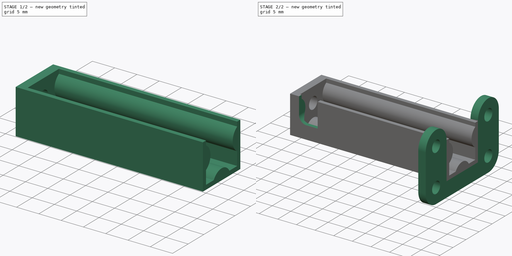
[diagram: build sequence overview — one tinted view per stage of 2, left to right]
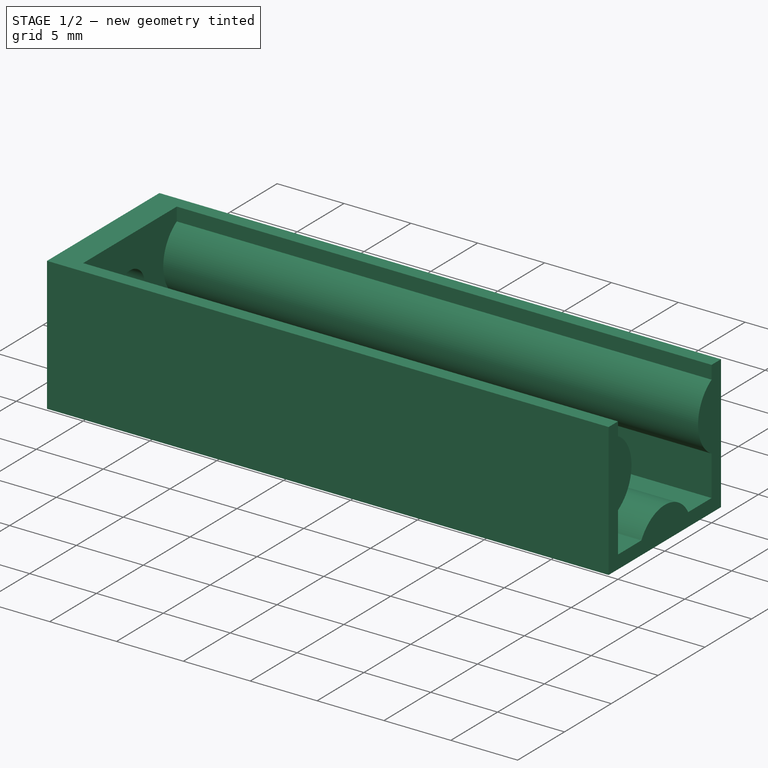
[diagram: stage 1 of 2 — iso view after this stage's code; geometry added in this stage tinted green]
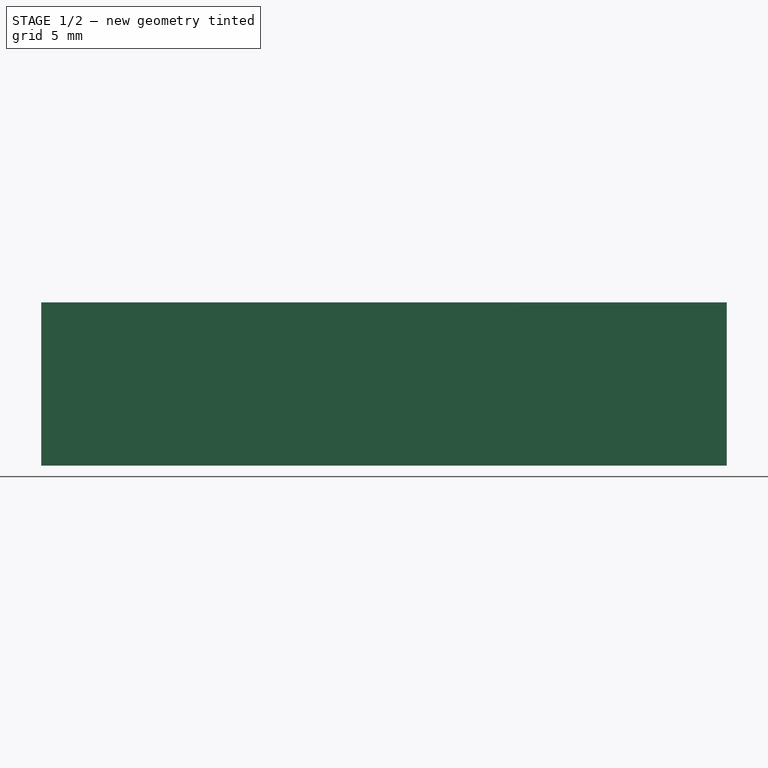
[diagram: stage 1 of 2 — front view after this stage's code; geometry added in this stage tinted green]
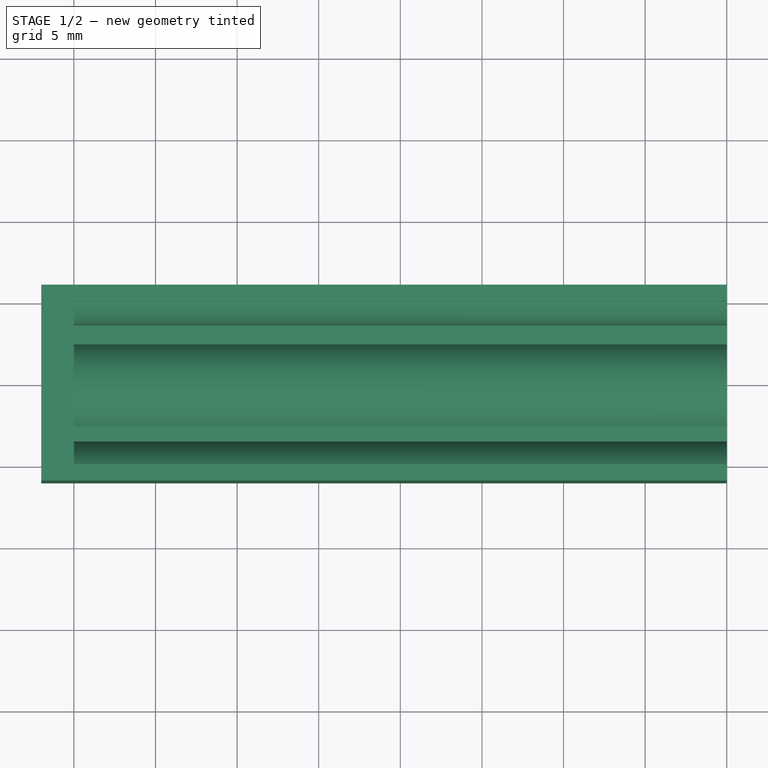
[diagram: stage 1 of 2 — top view after this stage's code; geometry added in this stage tinted green]
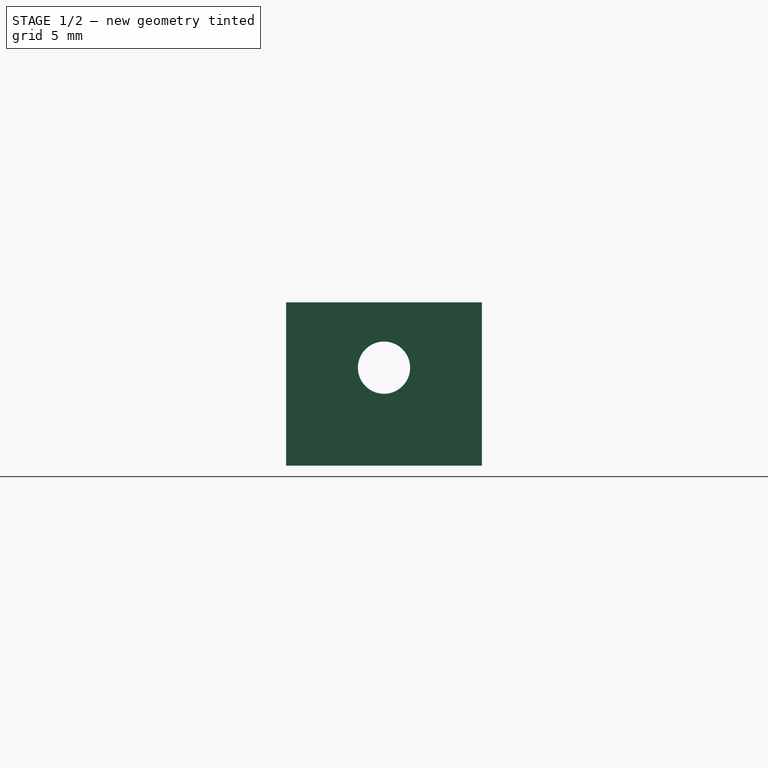
[diagram: stage 1 of 2 — right view after this stage's code; geometry added in this stage tinted green]
FCSTD DOCUMENT  (FreeCAD 0.19R24344 (Git))
Label: MicroManipulator_Rail_top
Comment: Top rail for the MicroManipulator. Still a bit flimpsy, might need additional material for stability.
License: Creative Commons Attribution-NonCommercial-ShareAlike
LicenseURL: http://creativecommons.org/licenses/by-nc-sa/4.0/
objects: PartDesign::CoordinateSystem×7, Sketcher::SketchObject×4, PartDesign::Pad×3, PartDesign::Pocket×1, PartDesign::Body×1, App::Part×1
note: 20 computed .brp shape members not serialized (recipe doc carries the construction recipe); baked Part::Feature solids carry a one-line shape summary decoded from their .brp

FEATURE [Sketcher::SketchObject] Sketch
  FullyConstrained = true
  MapMode = 5
  Placement = pos=(0,0,0) rot=(0.57735,0.57735,0.57735;2.0944rad)
  Support = -> [YZ_Plane]
  sketch-geometry (14):
    g0: LineSegment StartX=-5 StartY=8 StartZ=0 EndX=-5 EndY=9 EndZ=0
    g1: LineSegment StartX=5 StartY=9 StartZ=0 EndX=5 EndY=8 EndZ=0
    g2: LineSegment StartX=5 StartY=3 StartZ=0 EndX=5 EndY=-4e-16 EndZ=0
    g3: LineSegment StartX=5 StartY=-4e-16 StartZ=0 EndX=2.5 EndY=-4e-16 EndZ=0
    g4: LineSegment StartX=-2.5 StartY=-2e-16 StartZ=0 EndX=-5 EndY=-2e-16 EndZ=0
    g5: LineSegment StartX=-5 StartY=-2e-16 StartZ=0 EndX=-5 EndY=3 EndZ=0
    g6: ArcOfCircle CenterX=1e-16 CenterY=-1.44338 CenterZ=0 NormalX=0 NormalY=0 NormalZ=1 AngleXU=0 Radius=2.88675 StartAngle=0.523599 EndAngle=2.61799
    g7: ArcOfCircle CenterX=-6.44338 CenterY=5.5 CenterZ=0 NormalX=0 NormalY=0 NormalZ=1 AngleXU=0 Radius=2.88675 StartAngle=5.23599 EndAngle=7.33038
    g8: ArcOfCircle CenterX=6.44338 CenterY=5.5 CenterZ=0 NormalX=0 NormalY=0 NormalZ=1 AngleXU=0 Radius=2.88675 StartAngle=2.0944 EndAngle=4.18879
    g9: LineSegment StartX=-5 StartY=9 StartZ=0 EndX=-6 EndY=9 EndZ=0
    g10: LineSegment StartX=-6 StartY=9 StartZ=0 EndX=-6 EndY=-1 EndZ=0
    g11: LineSegment StartX=-6 StartY=-1 StartZ=0 EndX=6 EndY=-1 EndZ=0
    g12: LineSegment StartX=6 StartY=-1 StartZ=0 EndX=6 EndY=9 EndZ=0
    g13: LineSegment StartX=6 StartY=9 StartZ=0 EndX=5 EndY=9 EndZ=0
  constraints (43):
    c: Vertical(g0)
    c: Vertical(g1)
    c: Vertical(g2)
    c: Coincident(g3,g2)
    c: Horizontal(g3)
    c: Horizontal(g4)
    c: Coincident(g5,g4)
    c: Vertical(g5)
    c: Coincident(g6,g4)
    c: Coincident(g6,g3)
    c: Coincident(g7,g5)
    c: Coincident(g7,g0)
    c: Coincident(g8,g2)
    c: Coincident(g8,g1)
    c: Vertical(g0,g5)
    c: Vertical(g1,g2)
    c: Angle(g7) = 2.0944
    c: Angle(g8) = 2.0944
    c: Angle(g6) = 2.0944
    c: Distance(g4,g3) = 5
    c: Distance(g5,g0) = 5
    c: Distance(g1,g2) = 5
    c: Horizontal(g0,g1)
    c: Symmetric(g1,g0,g-2)
    c: PointOnObject(g2,g-1)
    c: Symmetric(g3,g4,g-2)
    c: Distance(g0,g4) = 9
    c: Distance(g5,g4) = 3
    c: Coincident(g9,g0)
    c: Horizontal(g9)
    c: Coincident(g10,g9)
    c: Vertical(g10)
    c: Coincident(g11,g10)
    c: Horizontal(g11)
    c: Coincident(g12,g11)
    c: Vertical(g12)
    c: Coincident(g13,g12)
    c: Horizontal(g13)
    c: Distance(g9) = 1
    c: Distance(g13) = 1
    c: Coincident(g13,g1)
    c: DistanceY(g11,g2) = 1
    c: DistanceX(g4,g2) = 10
FEATURE [PartDesign::Pad] Pad
  Direction = (1,1,1)
  Length = 40
  Length2 = 100
  Placement = pos=(0,0,0) rot=(0.57735,0.57735,0.57735;2.0944rad)
  Profile = -> Sketch
  Type = 0
FEATURE [Sketcher::SketchObject] Sketch001
  ExternalGeometry = -> [Pad]
  FullyConstrained = true
  MapMode = 5
  Placement = pos=(0,0,0) rot=(0.57735,0.57735,-0.57735;4.18879rad)
  Support = -> [Pad]
  sketch-geometry (5):
    g0: LineSegment StartX=-6 StartY=1 StartZ=0 EndX=6 EndY=1 EndZ=0
    g1: LineSegment StartX=6 StartY=1 StartZ=0 EndX=6 EndY=-9 EndZ=0
    g2: LineSegment StartX=6 StartY=-9 StartZ=0 EndX=-6 EndY=-9 EndZ=0
    g3: LineSegment StartX=-6 StartY=-9 StartZ=0 EndX=-6 EndY=1 EndZ=0
    g4: Circle CenterX=0 CenterY=-5 CenterZ=0 NormalX=0 NormalY=0 NormalZ=1 AngleXU=0 Radius=1.6
  constraints (13):
    c: Coincident(g0,g1)
    c: Coincident(g1,g2)
    c: Coincident(g2,g3)
    c: Coincident(g3,g0)
    c: Horizontal(g0)
    c: Horizontal(g2)
    c: Vertical(g1)
    c: Vertical(g3)
    c: Coincident(g0,g-3)
    c: Coincident(g1,g-4)
    c: PointOnObject(g4,g-2)
    c: Diameter(g4) = 3.2
    c: DistanceY(g4,g-1) = 5
FEATURE [PartDesign::Pad] Pad001
  BaseFeature = -> Pad
  Direction = (1,1,1)
  Length = 2
  Length2 = 100
  Placement = pos=(0,0,0) rot=(0.57735,0.57735,0.57735;2.0944rad)
  Profile = -> Sketch001
  Type = 0
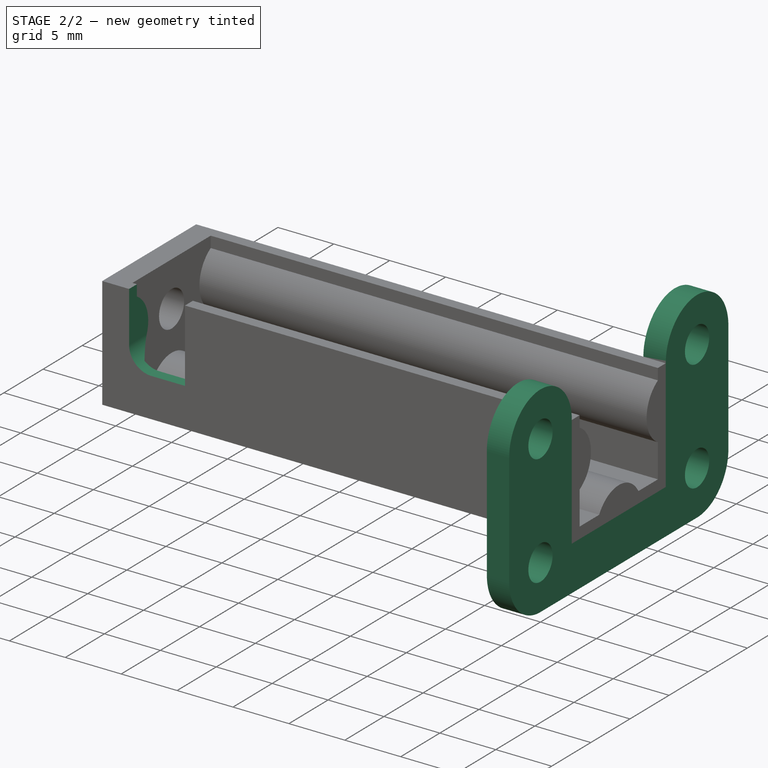
[diagram: stage 2 of 2 — iso view after this stage's code; geometry added in this stage tinted green]
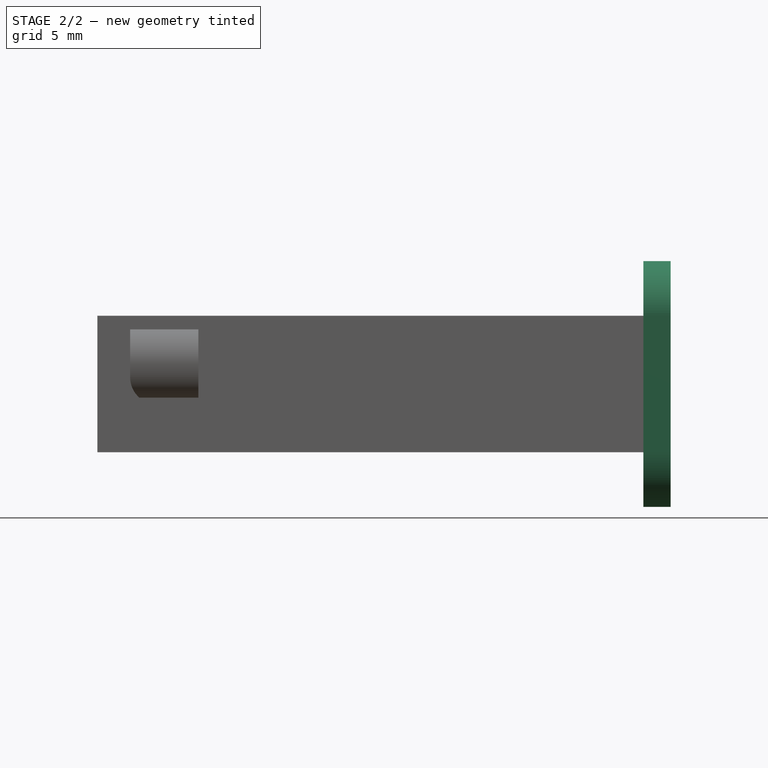
[diagram: stage 2 of 2 — front view after this stage's code; geometry added in this stage tinted green]
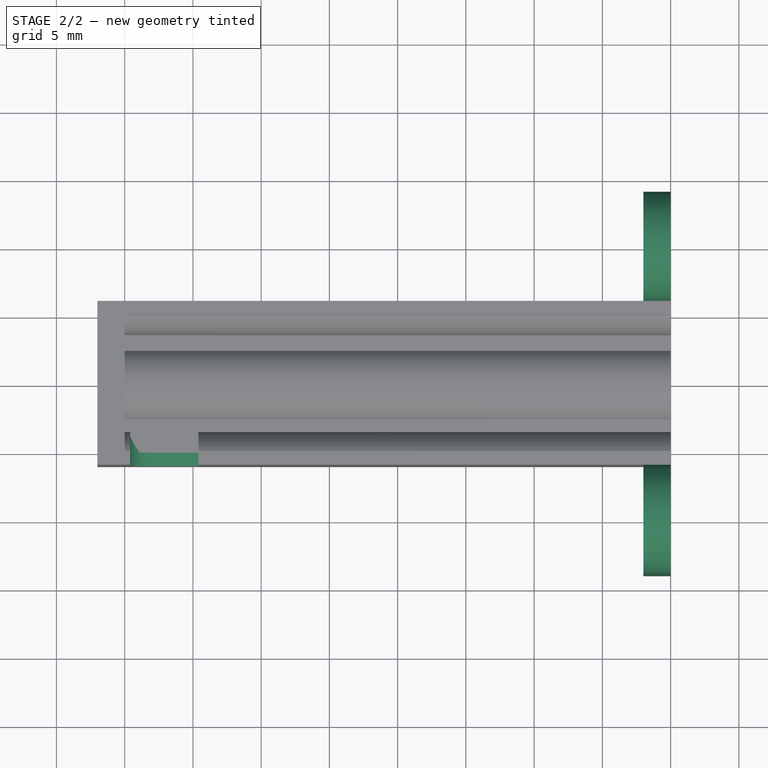
[diagram: stage 2 of 2 — top view after this stage's code; geometry added in this stage tinted green]
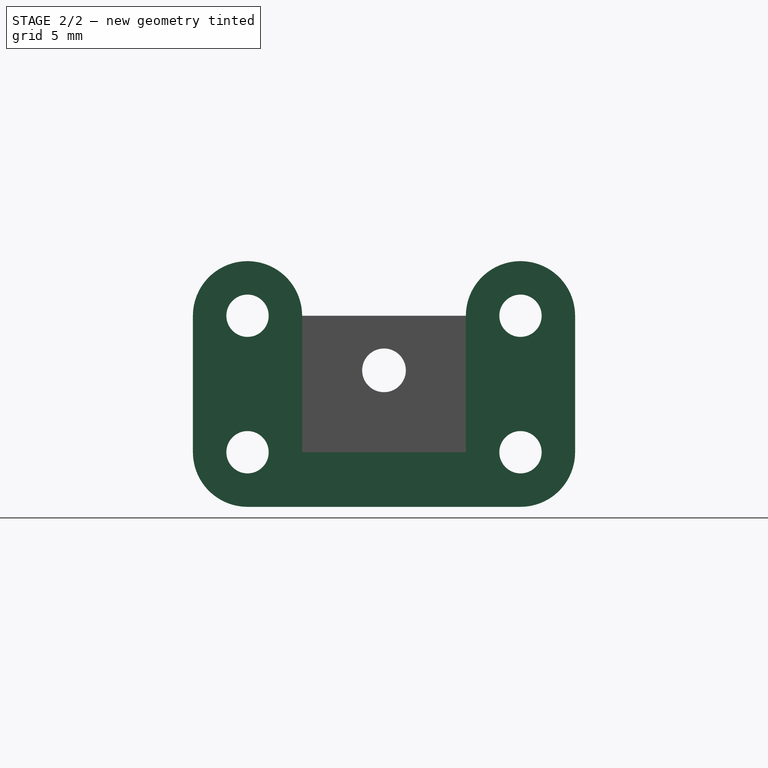
[diagram: stage 2 of 2 — right view after this stage's code; geometry added in this stage tinted green]
FEATURE [Sketcher::SketchObject] Sketch002
  ExternalGeometry = -> [Pad001]
  FullyConstrained = true
  MapMode = 5
  Placement = pos=(40,-8.8e-15,8.8e-15) rot=(0.57735,0.57735,0.57735;2.0944rad)
  Support = -> [Pad001]
  sketch-geometry (14):
    g0: Circle CenterX=-10 CenterY=9 CenterZ=0 NormalX=0 NormalY=0 NormalZ=1 AngleXU=0 Radius=1.55
    g1: Circle CenterX=10 CenterY=9 CenterZ=0 NormalX=0 NormalY=0 NormalZ=1 AngleXU=0 Radius=1.55
    g2: Circle CenterX=10 CenterY=-1 CenterZ=0 NormalX=0 NormalY=0 NormalZ=1 AngleXU=0 Radius=1.55
    g3: Circle CenterX=-10 CenterY=-1 CenterZ=0 NormalX=0 NormalY=0 NormalZ=1 AngleXU=0 Radius=1.55
    g4: ArcOfCircle CenterX=-10 CenterY=9 CenterZ=0 NormalX=0 NormalY=0 NormalZ=1 AngleXU=0 Radius=4 StartAngle=4e-16 EndAngle=3.14159
    g5: ArcOfCircle CenterX=-10 CenterY=-1 CenterZ=0 NormalX=0 NormalY=0 NormalZ=1 AngleXU=0 Radius=4 StartAngle=3.14159 EndAngle=4.71239
    g6: LineSegment StartX=-14 StartY=9 StartZ=0 EndX=-14 EndY=-1 EndZ=0
    g7: ArcOfCircle CenterX=10 CenterY=-1 CenterZ=0 NormalX=0 NormalY=0 NormalZ=1 AngleXU=0 Radius=4 StartAngle=4.71239 EndAngle=6.28319
    g8: ArcOfCircle CenterX=10 CenterY=9 CenterZ=0 NormalX=0 NormalY=0 NormalZ=1 AngleXU=0 Radius=4 StartAngle=1e-16 EndAngle=3.14159
    g9: LineSegment StartX=14 StartY=9 StartZ=0 EndX=14 EndY=-1 EndZ=0
    g10: LineSegment StartX=10 StartY=-5 StartZ=0 EndX=-10 EndY=-5 EndZ=0
    g11: LineSegment StartX=-6 StartY=9 StartZ=0 EndX=-5 EndY=1.8e-15 EndZ=0
    g12: LineSegment StartX=-5 StartY=1.8e-15 StartZ=0 EndX=5 EndY=1.8e-15 EndZ=0
    g13: LineSegment StartX=5 StartY=1.8e-15 StartZ=0 EndX=6 EndY=9 EndZ=0
  constraints (31):
    c: Diameter(g3) = 3.1
    c: Equal(g3,g0)
    c: Equal(g0,g1)
    c: Equal(g1,g2)
    c: DistanceX(g0,g1) = 20
    c: DistanceY(g3,g0) = 10
    c: Vertical(g0,g3)
    c: Vertical(g1,g2)
    c: Horizontal(g1,g0)
    c: DistanceY(g2,g-1) = 1
    c: Symmetric(g2,g3,g-2)
    c: Coincident(g4,g-3)
    c: Coincident(g0,g4)
    c: Vertical(g6)
    c: Tangent(g6,g4) = -1.5708
    c: Tangent(g6,g5) = -1.5708
    c: Coincident(g5,g3)
    c: Coincident(g8,g-4)
    c: Coincident(g8,g1)
    c: Coincident(g7,g2)
    c: Tangent(g10,g5) = 1.5708
    c: Tangent(g10,g7) = 1.5708
    c: Tangent(g9,g7) = 1.5708
    c: Tangent(g9,g8) = 1.5708
    c: Vertical(g9)
    c: Coincident(g11,g4)
    c: Coincident(g11,g-6)
    c: Coincident(g12,g11)
    c: Coincident(g12,g-5)
    c: Coincident(g13,g12)
    c: Coincident(g13,g8)
FEATURE [PartDesign::Pad] Pad002
  BaseFeature = -> Pad001
  Direction = (1,1,1)
  Length = 2
  Length2 = 100
  Placement = pos=(0,0,0) rot=(0.57735,0.57735,0.57735;2.0944rad)
  Profile = -> Sketch002
  Reversed = true
  Type = 0
FEATURE [Sketcher::SketchObject] Sketch003
  ExternalGeometry = -> [Pad002]
  FullyConstrained = true
  MapMode = 5
  Placement = pos=(-2.6e-15,-6,1.3e-15) rot=(-0.57735,-0.57735,0.57735;4.18879rad)
  Support = -> [Pad002]
  sketch-geometry (5):
    g0: LineSegment StartX=-9 StartY=0.4 StartZ=0 EndX=-4.5 EndY=0.4 EndZ=0
    g1: LineSegment StartX=-2.5 StartY=2.4 StartZ=0 EndX=-2.5 EndY=5.4 EndZ=0
    g2: LineSegment StartX=-2.5 StartY=5.4 StartZ=0 EndX=-9 EndY=5.4 EndZ=0
    g3: LineSegment StartX=-9 StartY=5.4 StartZ=0 EndX=-9 EndY=0.4 EndZ=0
    g4: ArcOfCircle CenterX=-4.5 CenterY=2.4 CenterZ=0 NormalX=0 NormalY=0 NormalZ=1 AngleXU=0 Radius=2 StartAngle=4.71239 EndAngle=6.28319
  constraints (14):
    c: Coincident(g1,g2)
    c: Coincident(g2,g3)
    c: Coincident(g3,g0)
    c: Horizontal(g0)
    c: Horizontal(g2)
    c: Vertical(g1)
    c: Vertical(g3)
    c: PointOnObject(g0,g-3)
    c: DistanceY(g-1,g0) = 0.4
    c: Distance(g3) = 5
    c: Tangent(g0,g4) = -1.5708
    c: Tangent(g1,g4) = -1.5708
    c: Radius(g4) = 2
    c: DistanceX(g1,g-1) = 2.5
FEATURE [PartDesign::Pocket] Pocket
  BaseFeature = -> Pad002
  Length = 5
  Length2 = 100
  Placement = pos=(0,0,0) rot=(0.57735,0.57735,0.57735;2.0944rad)
  Profile = -> Sketch003
  Type = 0
FEATURE [PartDesign::Body] Body
  Group = -> [Pad,Sketch001,Pad001,Sketch002,Pad002,Sketch003,Pocket]
  Origin = -> Origin
  Tip = -> Pocket
FEATURE [PartDesign::CoordinateSystem] LCS_0
  AttacherType = Attacher::AttachEngine3D
  MapMode = 2
  Support = -> [X_Axis001]
FEATURE [PartDesign::CoordinateSystem] Screw_LCS
  AttacherType = Attacher::AttachEngine3D
  MapMode = 45
  Placement = pos=(-2,9.6e-15,5) rot=(0.57735,0.57735,0.57735;2.0944rad)
  Support = -> [Pocket]
FEATURE [PartDesign::CoordinateSystem] MountPoint_LCS
  AttacherType = Attacher::AttachEngine3D
  AttachmentOffset = pos=(0,0,0) rot=(0,1,0;3.14159rad)
  MapMode = 45
  Placement = pos=(40,10,9) rot=(-0.57735,0.57735,0.57735;4.18879rad)
  Support = -> [Pocket]
FEATURE [PartDesign::CoordinateSystem] LCS_Fasten_1
  AttacherType = Attacher::AttachEngine3D
  MapMode = 11
  Placement = pos=(38,-10,9) rot=(0.707107,0,0.707107;3.14159rad)
  Support = -> [Pocket]
FEATURE [PartDesign::CoordinateSystem] LCS_Fasten_2
  AttacherType = Attacher::AttachEngine3D
  MapMode = 11
  Placement = pos=(38,-10,-1) rot=(0.707107,0,0.707107;3.14159rad)
  Support = -> [Pocket]
FEATURE [PartDesign::CoordinateSystem] LCS_Fasten_3
  AttacherType = Attacher::AttachEngine3D
  MapMode = 11
  Placement = pos=(38,10,9) rot=(0.707107,0,0.707107;3.14159rad)
  Support = -> [Pocket]
FEATURE [PartDesign::CoordinateSystem] LCS_Fasten_4
  AttacherType = Attacher::AttachEngine3D
  MapMode = 11
  Placement = pos=(38,10,-1) rot=(0.707107,0,0.707107;3.14159rad)
  Support = -> [Pocket]
FEATURE [App::Part] CageTop  label="Rail_top"
  Group = -> [LCS_0,Body,Screw_LCS,MountPoint_LCS,LCS_Fasten_1,LCS_Fasten_2,LCS_Fasten_3,LCS_Fasten_4]
  Origin = -> Origin001
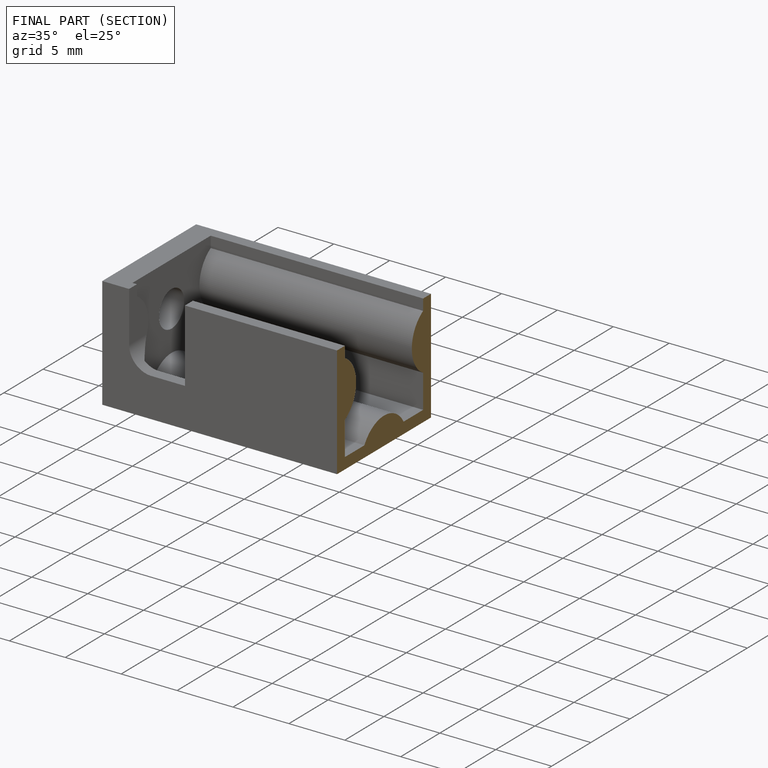
[diagram: finished part — half-section view (interior)]
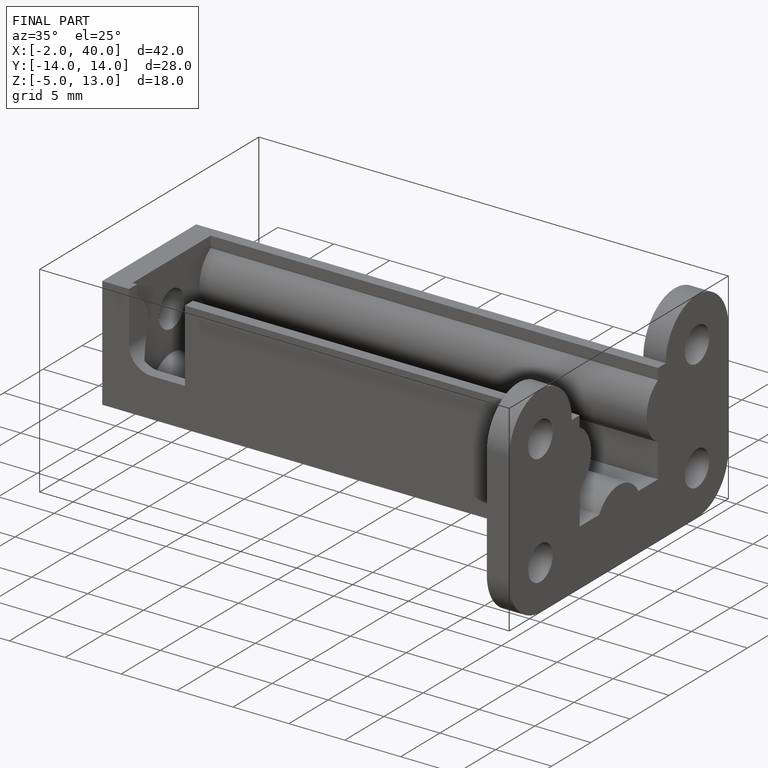
[diagram: finished part — iso view with bounding-box wireframe]
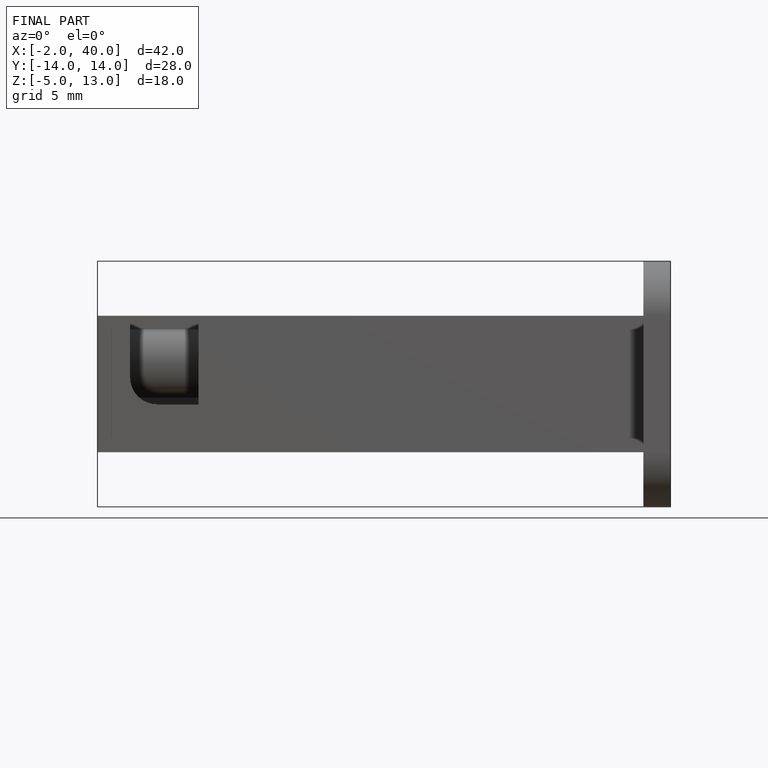
[diagram: finished part — front view with bounding-box wireframe]
